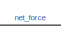
[diagram: root canvas - part 1/3, top center region]
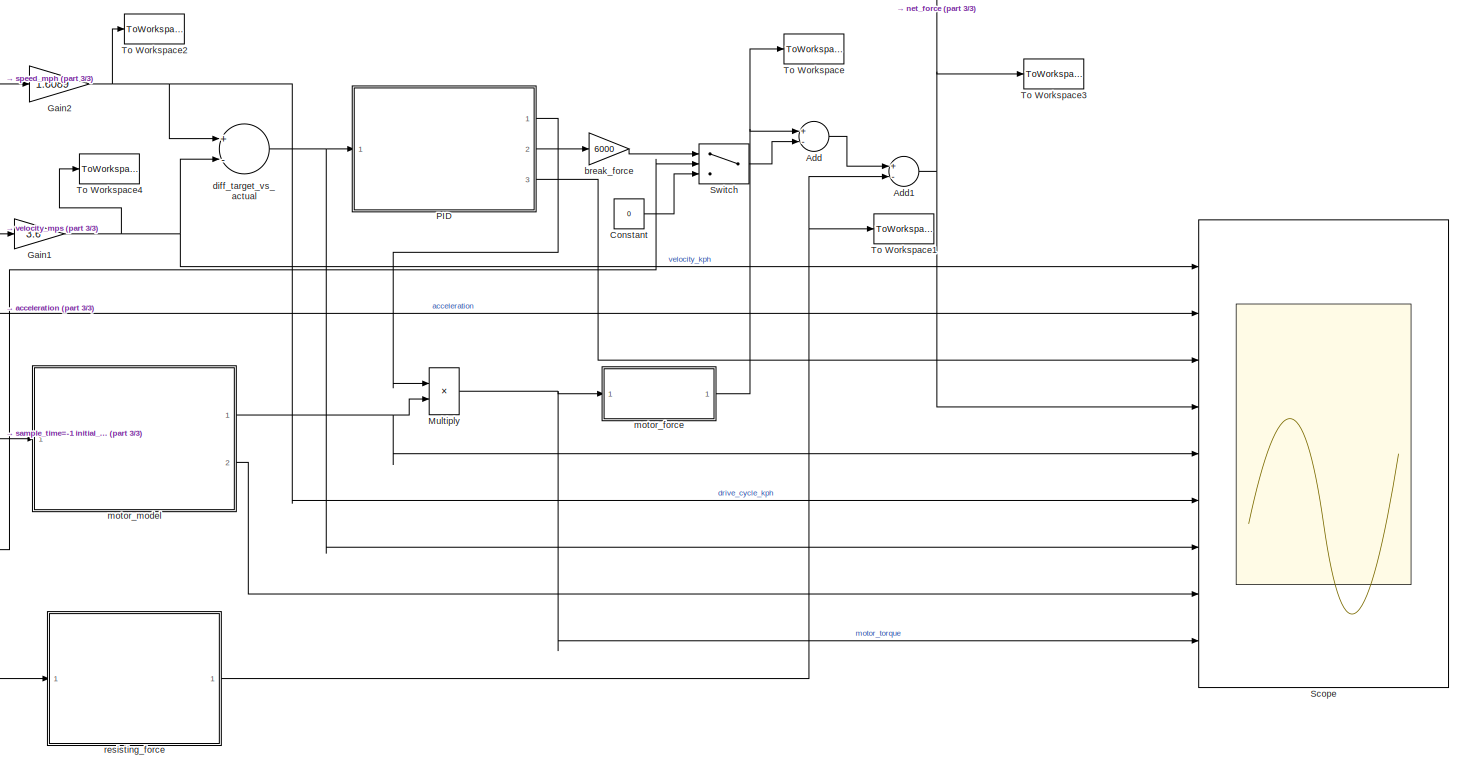
[diagram: root canvas - part 2/3, most of the canvas]
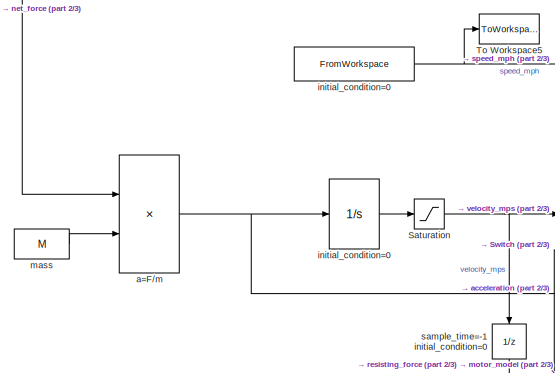
[diagram: root canvas - part 3/3, middle left region]
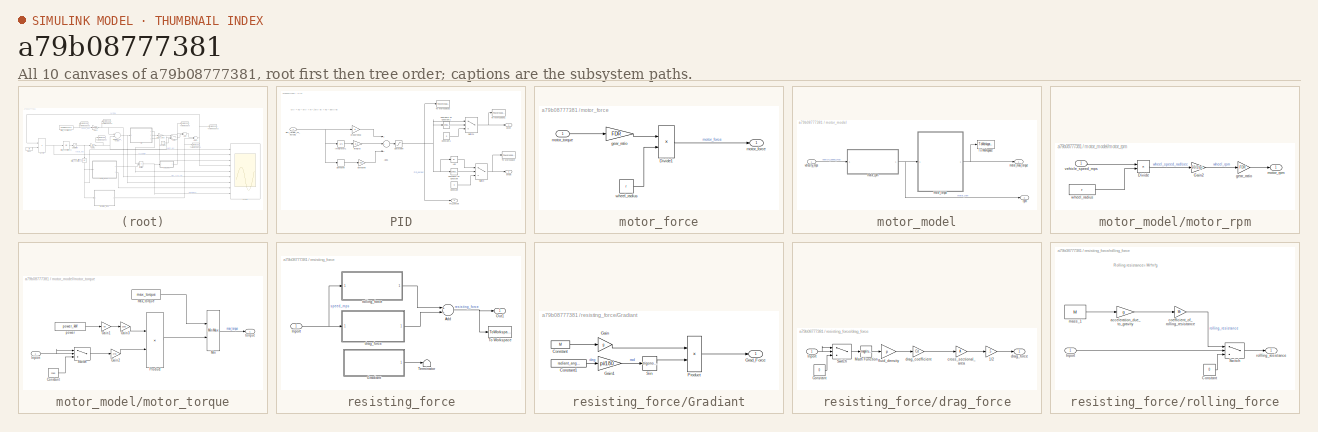
[diagram: thumbnail index - all 10 canvases of the model, root first then tree order]
MODEL slx_a79b08777381
KIND model
CONFIG AbsTol = auto
CONFIG EnableMultiTasking = off
CONFIG FixedStep = 0.01
CONFIG MaxStep = auto
CONFIG MinStep = auto
CONFIG RelTol = 1e-3
CONFIG SampleTimeConstraint = Unconstrained
CONFIG Solver = ode3
CONFIG SolverName = ode3
CONFIG StartTime = 0.0
CONFIG StopTime = sim_time
BLOCK [Sum] Add
  InputSameDT = off
  Inputs = +-
  OutDataTypeStr = Inherit: Inherit via internal rule
  Ports = [2, 1]
  SaturateOnIntegerOverflow = off
BLOCK [Sum] Add1
  InputSameDT = off
  Inputs = +-
  OutDataTypeStr = Inherit: Inherit via internal rule
  Ports = [2, 1]
  SaturateOnIntegerOverflow = off
BLOCK [Constant] Constant
  Value = 0
BLOCK [Gain] Gain1
  Gain = 3.6
  OutDataTypeStr = Inherit: Inherit via internal rule
  ParamDataTypeStr = Inherit: Inherit via internal rule
  SaturateOnIntegerOverflow = off
BLOCK [Gain] Gain2
  Gain = 1.6089
  OutDataTypeStr = Inherit: Inherit via internal rule
  ParamDataTypeStr = Inherit: Inherit via internal rule
  SaturateOnIntegerOverflow = off
BLOCK [Product] Multiply
  InputSameDT = off
  OutDataTypeStr = Inherit: Inherit via internal rule
  Ports = [2, 1]
  RndMeth = Floor
  SaturateOnIntegerOverflow = off
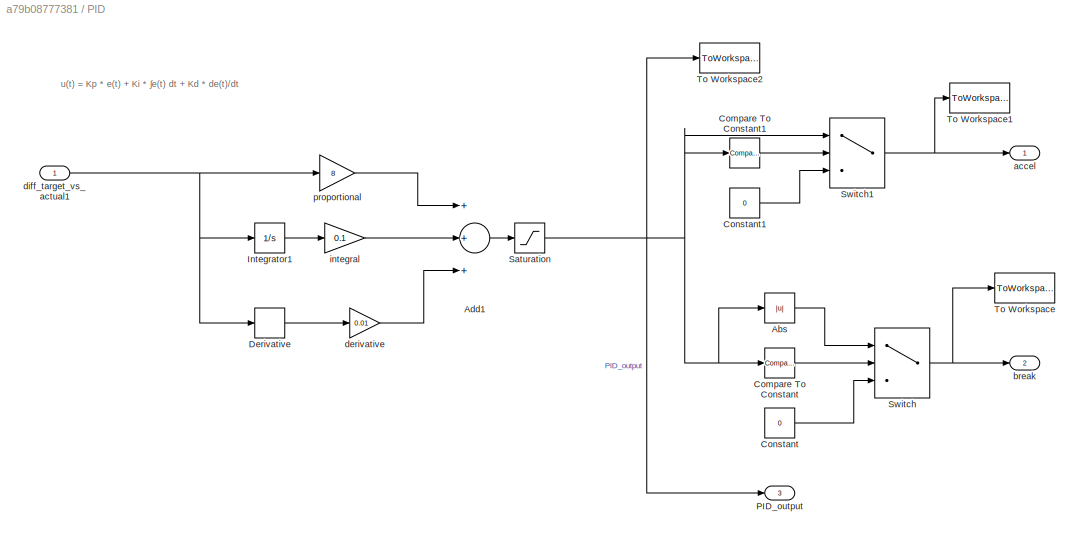
BLOCK [SubSystem] PID
  Ports = [1, 3]
  RequestExecContextInheritance = off
BLOCK [Abs] PID/Abs
  SaturateOnIntegerOverflow = off
BLOCK [Sum] PID/Add1
  InputSameDT = off
  Inputs = +++
  OutDataTypeStr = Inherit: Inherit via internal rule
  Ports = [3, 1]
  SaturateOnIntegerOverflow = off
BLOCK [Reference] PID/Compare To Constant  REF=simulink/Logic and Bit
Operations/Compare
To Constant
  Ports = [1, 1]
  SourceBlock = simulink/Logic and Bit\nOperations/Compare\nTo Constant
  SourceProductBaseCode = SL
  SourceProductName = Simulink
  SourceType = Compare To Constant
BLOCK [Reference] PID/Compare To Constant1  REF=simulink/Logic and Bit
Operations/Compare
To Constant
  Ports = [1, 1]
  SourceBlock = simulink/Logic and Bit\nOperations/Compare\nTo Constant
  SourceProductBaseCode = SL
  SourceProductName = Simulink
  SourceType = Compare To Constant
BLOCK [Constant] PID/Constant
  Value = 0
BLOCK [Constant] PID/Constant1
  Value = 0
BLOCK [Derivative] PID/Derivative
BLOCK [Integrator] PID/Integrator1
  Ports = [1, 1]
BLOCK [Outport] PID/PID_output
  IconDisplay = Port number
  Port = 3
BLOCK [Saturate] PID/Saturation
  InputPortMap = u0
  LowerLimit = -1
  Ports = [1, 1]
  UpperLimit = 1
BLOCK [Switch] PID/Switch
  Criteria = u2 ~= 0
  InputSameDT = off
  SaturateOnIntegerOverflow = off
BLOCK [Switch] PID/Switch1
  Criteria = u2 > Threshold
  InputSameDT = off
  SaturateOnIntegerOverflow = off
BLOCK [ToWorkspace] PID/To Workspace
  FixptAsFi = on
  MaxDataPoints = inf
  Ports = [1]
  SampleTime = -1
  Save2DSignal = 3-D array (concatenate along third dimension)
  SaveFormat = Timeseries
  VariableName = pid_lower
BLOCK [ToWorkspace] PID/To Workspace1
  FixptAsFi = on
  MaxDataPoints = inf
  Ports = [1]
  SampleTime = -1
  Save2DSignal = 3-D array (concatenate along third dimension)
  SaveFormat = Timeseries
  VariableName = pid_upper
BLOCK [ToWorkspace] PID/To Workspace2
  FixptAsFi = on
  MaxDataPoints = inf
  Ports = [1]
  SampleTime = -1
  Save2DSignal = 3-D array (concatenate along third dimension)
  SaveFormat = Timeseries
  VariableName = pid_out_test
BLOCK [Outport] PID/accel
  IconDisplay = Port number
BLOCK [Outport] PID/break
  IconDisplay = Port number
  Port = 2
BLOCK [Gain] PID/derivative 
  Gain = 0.01
  OutDataTypeStr = Inherit: Inherit via internal rule
  ParamDataTypeStr = Inherit: Inherit via internal rule
  SaturateOnIntegerOverflow = off
BLOCK [Inport] PID/diff_target_vs_actual1
  IconDisplay = Port number
BLOCK [Gain] PID/integral
  Gain = 0.1
  OutDataTypeStr = Inherit: Inherit via internal rule
  ParamDataTypeStr = Inherit: Inherit via internal rule
  SaturateOnIntegerOverflow = off
BLOCK [Gain] PID/proportional
  Gain = 8
  OutDataTypeStr = Inherit: Inherit via internal rule
  ParamDataTypeStr = Inherit: Inherit via internal rule
  SaturateOnIntegerOverflow = off
BLOCK [Saturate] Saturation
  InputPortMap = u0
  LowerLimit = 0
  Ports = [1, 1]
  UpperLimit = inf
BLOCK [Scope] Scope
  Floating = off
  NumInputPorts = 9
  Ports = [9]
  ScopeSpecificationString = Simulink.scopes.TimeScopeBlockCfg('CurrentConfiguration', extmgr.ConfigurationSet(extmgr.Configuration('Core','General UI',true),extmgr.Configuration('Core','Source UI',true),extmgr.Configuration('Sources','WiredSimulink',true),extmgr.Configuration('Visuals','Time Domain',true,'SerializedDisplays',{struct('MinYLimReal','-16.14951','MaxYLimReal','145.34561','YLabelReal','','MinYLimMag','0.00000','M...<+9915ch>
BLOCK [Switch] Switch
  Criteria = u2 ~= 0
  InputSameDT = off
  SaturateOnIntegerOverflow = off
BLOCK [ToWorkspace] To Workspace
  FixptAsFi = on
  MaxDataPoints = inf
  Ports = [1]
  SampleTime = -1
  Save2DSignal = 3-D array (concatenate along third dimension)
  SaveFormat = Timeseries
  VariableName = accel_force
BLOCK [ToWorkspace] To Workspace1
  FixptAsFi = on
  MaxDataPoints = inf
  Ports = [1]
  SampleTime = -1
  Save2DSignal = 3-D array (concatenate along third dimension)
  SaveFormat = Timeseries
  VariableName = break_force
BLOCK [ToWorkspace] To Workspace2
  FixptAsFi = on
  MaxDataPoints = inf
  Ports = [1]
  SampleTime = -1
  Save2DSignal = 3-D array (concatenate along third dimension)
  SaveFormat = Timeseries
  VariableName = actual_speed
BLOCK [ToWorkspace] To Workspace3
  FixptAsFi = on
  MaxDataPoints = inf
  Ports = [1]
  SampleTime = -1
  Save2DSignal = 3-D array (concatenate along third dimension)
  SaveFormat = Timeseries
  VariableName = net_force
BLOCK [ToWorkspace] To Workspace4
  FixptAsFi = on
  MaxDataPoints = inf
  Ports = [1]
  SampleTime = -1
  Save2DSignal = 3-D array (concatenate along third dimension)
  SaveFormat = Timeseries
  VariableName = measured_speed
BLOCK [ToWorkspace] To Workspace5
  FixptAsFi = on
  MaxDataPoints = inf
  Ports = [1]
  SampleTime = -1
  Save2DSignal = 3-D array (concatenate along third dimension)
  SaveFormat = Timeseries
  VariableName = speed_test
BLOCK [Product] a=F//m
  InputSameDT = off
  Inputs = */
  OutDataTypeStr = Inherit: Inherit via internal rule
  Ports = [2, 1]
  RndMeth = Floor
  SaturateOnIntegerOverflow = off
BLOCK [Gain] break_force
  Gain = 6000
  OutDataTypeStr = Inherit: Inherit via internal rule
  ParamDataTypeStr = Inherit: Inherit via internal rule
  SaturateOnIntegerOverflow = off
BLOCK [Sum] diff_target_vs_actual
  InputSameDT = off
  Inputs = +-
  OutDataTypeStr = Inherit: Inherit via internal rule
  Ports = [2, 1]
  SaturateOnIntegerOverflow = off
BLOCK [Integrator] initial_condition=0
  InitialCondition = initial_speed
  LowerSaturationLimit = 0
  Ports = [1, 1]
BLOCK [FromWorkspace] initial_condition=0 
  SampleTime = 0.01
  VariableName = drive_cycle
  ZeroCross = on
BLOCK [Constant] mass
  Value = M
BLOCK [SubSystem] motor_force
  Ports = [1, 1]
  RequestExecContextInheritance = off
BLOCK [Product] motor_force/Divide1
  InputSameDT = off
  Inputs = */
  OutDataTypeStr = Inherit: Inherit via internal rule
  Ports = [2, 1]
  RndMeth = Floor
  SaturateOnIntegerOverflow = off
BLOCK [Gain] motor_force/gear_ratio
  Gain = FDR
  OutDataTypeStr = Inherit: Inherit via internal rule
  ParamDataTypeStr = Inherit: Inherit via internal rule
  SaturateOnIntegerOverflow = off
BLOCK [Outport] motor_force/motor_force
  IconDisplay = Port number
BLOCK [Inport] motor_force/motor_torque
  IconDisplay = Port number
BLOCK [Constant] motor_force/wheel_radius
  Value = r
BLOCK [SubSystem] motor_model
  Ports = [1, 2]
  RequestExecContextInheritance = off
BLOCK [ToWorkspace] motor_model/To Workspace
  FixptAsFi = on
  MaxDataPoints = inf
  Ports = [1]
  SampleTime = -1
  Save2DSignal = 3-D array (concatenate along third dimension)
  SaveFormat = Timeseries
  VariableName = torque_data
BLOCK [Outport] motor_model/motor_max_torque
  IconDisplay = Port number
BLOCK [SubSystem] motor_model/motor_rpm
  Ports = [1, 1]
  RequestExecContextInheritance = off
BLOCK [Product] motor_model/motor_rpm/Divide
  InputSameDT = off
  Inputs = */
  OutDataTypeStr = Inherit: Inherit via internal rule
  Ports = [2, 1]
  RndMeth = Floor
  SaturateOnIntegerOverflow = off
BLOCK [Gain] motor_model/motor_rpm/Gain2
  Gain = 60/2/pi
  OutDataTypeStr = Inherit: Inherit via internal rule
  ParamDataTypeStr = Inherit: Inherit via internal rule
  SaturateOnIntegerOverflow = off
BLOCK [Gain] motor_model/motor_rpm/gear_ratio
  Gain = FDR
  OutDataTypeStr = Inherit: Inherit via internal rule
  ParamDataTypeStr = Inherit: Inherit via internal rule
  SaturateOnIntegerOverflow = off
BLOCK [Outport] motor_model/motor_rpm/motor_rpm
  IconDisplay = Port number
BLOCK [Inport] motor_model/motor_rpm/vehicle_speed_mps
  IconDisplay = Port number
BLOCK [Constant] motor_model/motor_rpm/wheel_radius
  Value = r
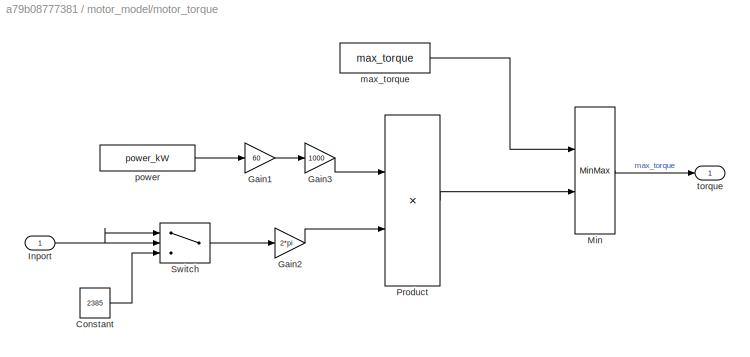
BLOCK [SubSystem] motor_model/motor_torque
  Ports = [1, 1]
  RequestExecContextInheritance = off
BLOCK [Constant] motor_model/motor_torque/Constant
  Value = 2385
BLOCK [Gain] motor_model/motor_torque/Gain1
  Gain = 60
  OutDataTypeStr = Inherit: Inherit via internal rule
  ParamDataTypeStr = Inherit: Inherit via internal rule
  SaturateOnIntegerOverflow = off
BLOCK [Gain] motor_model/motor_torque/Gain2
  Gain = 2*pi
  OutDataTypeStr = Inherit: Inherit via internal rule
  ParamDataTypeStr = Inherit: Inherit via internal rule
  SaturateOnIntegerOverflow = off
BLOCK [Gain] motor_model/motor_torque/Gain3
  Gain = 1000
  OutDataTypeStr = Inherit: Inherit via internal rule
  ParamDataTypeStr = Inherit: Inherit via internal rule
  SaturateOnIntegerOverflow = off
BLOCK [Inport] motor_model/motor_torque/Inport
  IconDisplay = Port number
BLOCK [MinMax] motor_model/motor_torque/Min
  InputSameDT = off
  Inputs = 2
  Ports = [2, 1]
  SaturateOnIntegerOverflow = off
BLOCK [Product] motor_model/motor_torque/Product
  InputSameDT = off
  Inputs = */
  OutDataTypeStr = Inherit: Inherit via internal rule
  Ports = [2, 1]
  RndMeth = Floor
  SaturateOnIntegerOverflow = off
BLOCK [Switch] motor_model/motor_torque/Switch
  Criteria = u2 ~= 0
  InputSameDT = off
  SaturateOnIntegerOverflow = off
BLOCK [Constant] motor_model/motor_torque/max_torque
  Value = max_torque
BLOCK [Constant] motor_model/motor_torque/power
  Value = power_kW
BLOCK [Outport] motor_model/motor_torque/torque
  IconDisplay = Port number
BLOCK [Outport] motor_model/rpm
  IconDisplay = Port number
  Port = 2
BLOCK [Inport] motor_model/velocity_mps
  IconDisplay = Port number
BLOCK [SubSystem] resisting_force
  Ports = [1, 1]
  RequestExecContextInheritance = off
BLOCK [Sum] resisting_force/Add
  InputSameDT = off
  OutDataTypeStr = Inherit: Inherit via internal rule
  Ports = [2, 1]
  SaturateOnIntegerOverflow = off
BLOCK [SubSystem] resisting_force/Gradiant
  Ports = [0, 1]
  RequestExecContextInheritance = off
BLOCK [Constant] resisting_force/Gradiant/Constant
  Value = M
BLOCK [Constant] resisting_force/Gradiant/Constant1
  Value = radiant_angle
BLOCK [Gain] resisting_force/Gradiant/Gain
  Gain = g
  OutDataTypeStr = Inherit: Inherit via internal rule
  ParamDataTypeStr = Inherit: Inherit via internal rule
  SaturateOnIntegerOverflow = off
BLOCK [Gain] resisting_force/Gradiant/Gain1
  Gain = pi/180
  OutDataTypeStr = Inherit: Inherit via internal rule
  ParamDataTypeStr = Inherit: Inherit via internal rule
  SaturateOnIntegerOverflow = off
BLOCK [Outport] resisting_force/Gradiant/Grad_Force
  IconDisplay = Port number
BLOCK [Product] resisting_force/Gradiant/Product
  InputSameDT = off
  OutDataTypeStr = Inherit: Inherit via internal rule
  Ports = [2, 1]
  RndMeth = Floor
  SaturateOnIntegerOverflow = off
BLOCK [Trigonometry] resisting_force/Gradiant/Sin
  Ports = [1, 1]
BLOCK [Inport] resisting_force/Inport
  IconDisplay = Port number
BLOCK [Outport] resisting_force/Out1
  IconDisplay = Port number
BLOCK [Terminator] resisting_force/Terminator
BLOCK [ToWorkspace] resisting_force/To Workspace
  FixptAsFi = on
  MaxDataPoints = inf
  Ports = [1]
  SampleTime = -1
  Save2DSignal = 3-D array (concatenate along third dimension)
  SaveFormat = Timeseries
  VariableName = resis_force
BLOCK [SubSystem] resisting_force/drag_force
  Ports = [1, 1]
  RequestExecContextInheritance = off
BLOCK [Gain] resisting_force/drag_force/1//2
  Gain = .5
  OutDataTypeStr = Inherit: Inherit via internal rule
  ParamDataTypeStr = Inherit: Inherit via internal rule
  SaturateOnIntegerOverflow = off
BLOCK [Constant] resisting_force/drag_force/Constant
  Value = 0
BLOCK [Inport] resisting_force/drag_force/Inport
  IconDisplay = Port number
BLOCK [Math] resisting_force/drag_force/Math Function
  Operator = magnitude^2
  OutputSignalType = real
  Ports = [1, 1]
BLOCK [Switch] resisting_force/drag_force/Switch
  Criteria = u2 ~= 0
  InputSameDT = off
  SaturateOnIntegerOverflow = off
BLOCK [Gain] resisting_force/drag_force/cross_sectional_area
  Gain = A
  OutDataTypeStr = Inherit: Inherit via internal rule
  ParamDataTypeStr = Inherit: Inherit via internal rule
  SaturateOnIntegerOverflow = off
BLOCK [Gain] resisting_force/drag_force/drag_coefficient
  Gain = Cd
  OutDataTypeStr = Inherit: Inherit via internal rule
  ParamDataTypeStr = Inherit: Inherit via internal rule
  SaturateOnIntegerOverflow = off
BLOCK [Outport] resisting_force/drag_force/drag_force
  IconDisplay = Port number
BLOCK [Gain] resisting_force/drag_force/fluid_density
  Gain = p
  OutDataTypeStr = Inherit: Inherit via internal rule
  ParamDataTypeStr = Inherit: Inherit via internal rule
  SaturateOnIntegerOverflow = off
BLOCK [SubSystem] resisting_force/rolling_force
  Ports = [1, 1]
  RequestExecContextInheritance = off
BLOCK [Constant] resisting_force/rolling_force/Constant
  Value = 0
BLOCK [Inport] resisting_force/rolling_force/Inport
  IconDisplay = Port number
BLOCK [Switch] resisting_force/rolling_force/Switch
  Criteria = u2 ~= 0
  InputSameDT = off
  SaturateOnIntegerOverflow = off
BLOCK [Gain] resisting_force/rolling_force/acceleration_due_to_gravity 
  Gain = g
  OutDataTypeStr = Inherit: Inherit via internal rule
  ParamDataTypeStr = Inherit: Inherit via internal rule
  SaturateOnIntegerOverflow = off
BLOCK [Gain] resisting_force/rolling_force/coefficient_of_rolling_resistance
  Gain = Mr
  OutDataTypeStr = Inherit: Inherit via internal rule
  ParamDataTypeStr = Inherit: Inherit via internal rule
  SaturateOnIntegerOverflow = off
BLOCK [Constant] resisting_force/rolling_force/mass_1
  Value = M
BLOCK [Outport] resisting_force/rolling_force/rollling_resistance
  IconDisplay = Port number
BLOCK [UnitDelay] sample_time=-1 initial_condition=0 
  InputProcessing = Elements as channels (sample based)
  SampleTime = -1
ANNOTATION PID: u(t) = Kp * e(t) + Ki * ∫e(t) dt + Kd * de(t)/dt
ANNOTATION resisting_force/rolling_force: Rolling resistance= Mr*m*g
NET Add1:1 -> Scope:4, To Workspace3:1, a=F//m:1
LINE Add:1 -> Add1:1
LINE Constant:1 -> Switch:3
NET Gain1:1 -> Scope:1, To Workspace4:1, diff_target_vs_actual:2
NET Gain2:1 -> Scope:6, To Workspace2:1, diff_target_vs_actual:1
NET Multiply:1 -> Scope:9, motor_force:1
LINE PID/Abs:1 -> PID/Switch:1
LINE PID/Add1:1 -> PID/Saturation:1
LINE PID/Compare To Constant1:1 -> PID/Switch1:2
LINE PID/Compare To Constant:1 -> PID/Switch:2
LINE PID/Constant1:1 -> PID/Switch1:3
LINE PID/Constant:1 -> PID/Switch:3
LINE PID/Derivative:1 -> PID/derivative :1
LINE PID/Integrator1:1 -> PID/integral:1
NET PID/Saturation:1 -> PID/Abs:1, PID/Compare To Constant1:1, PID/Compare To Constant:1, PID/PID_output:1, PID/Switch1:1, PID/To Workspace2:1
NET PID/Switch1:1 -> PID/To Workspace1:1, PID/accel:1
NET PID/Switch:1 -> PID/To Workspace:1, PID/break:1
LINE PID/derivative :1 -> PID/Add1:3
NET PID/diff_target_vs_actual1:1 -> PID/Derivative:1, PID/Integrator1:1, PID/proportional:1
LINE PID/integral:1 -> PID/Add1:2
LINE PID/proportional:1 -> PID/Add1:1
LINE PID:1 -> Multiply:1
LINE PID:2 -> break_force:1
LINE PID:3 -> Scope:3
NET Saturation:1 -> Gain1:1, sample_time=-1 initial_condition=0 :1
LINE Switch:1 -> Add:2
NET a=F//m:1 -> Scope:2, initial_condition=0:1
LINE break_force:1 -> Switch:1
NET diff_target_vs_actual:1 -> PID:1, Scope:7
NET initial_condition=0 :1 -> Gain2:1, To Workspace5:1
LINE initial_condition=0:1 -> Saturation:1
LINE mass:1 -> a=F//m:2
LINE motor_force/Divide1:1 -> motor_force/motor_force:1
LINE motor_force/gear_ratio:1 -> motor_force/Divide1:1
LINE motor_force/motor_torque:1 -> motor_force/gear_ratio:1
LINE motor_force/wheel_radius:1 -> motor_force/Divide1:2
NET motor_force:1 -> Add:1, To Workspace:1
LINE motor_model/motor_rpm/Divide:1 -> motor_model/motor_rpm/Gain2:1
LINE motor_model/motor_rpm/Gain2:1 -> motor_model/motor_rpm/gear_ratio:1
LINE motor_model/motor_rpm/gear_ratio:1 -> motor_model/motor_rpm/motor_rpm:1
LINE motor_model/motor_rpm/vehicle_speed_mps:1 -> motor_model/motor_rpm/Divide:1
LINE motor_model/motor_rpm/wheel_radius:1 -> motor_model/motor_rpm/Divide:2
NET motor_model/motor_rpm:1 -> motor_model/motor_torque:1, motor_model/rpm:1
LINE motor_model/motor_torque/Constant:1 -> motor_model/motor_torque/Switch:3
LINE motor_model/motor_torque/Gain1:1 -> motor_model/motor_torque/Gain3:1
LINE motor_model/motor_torque/Gain2:1 -> motor_model/motor_torque/Product:2
LINE motor_model/motor_torque/Gain3:1 -> motor_model/motor_torque/Product:1
NET motor_model/motor_torque/Inport:1 -> motor_model/motor_torque/Switch:1, motor_model/motor_torque/Switch:2
LINE motor_model/motor_torque/Min:1 -> motor_model/motor_torque/torque:1
LINE motor_model/motor_torque/Product:1 -> motor_model/motor_torque/Min:2
LINE motor_model/motor_torque/Switch:1 -> motor_model/motor_torque/Gain2:1
LINE motor_model/motor_torque/max_torque:1 -> motor_model/motor_torque/Min:1
LINE motor_model/motor_torque/power:1 -> motor_model/motor_torque/Gain1:1
NET motor_model/motor_torque:1 -> motor_model/To Workspace:1, motor_model/motor_max_torque:1
LINE motor_model/velocity_mps:1 -> motor_model/motor_rpm:1
NET motor_model:1 -> Multiply:2, Scope:5
LINE motor_model:2 -> Scope:8
NET resisting_force/Add:1 -> resisting_force/Out1:1, resisting_force/To Workspace:1
LINE resisting_force/Gradiant/Constant1:1 -> resisting_force/Gradiant/Gain1:1
LINE resisting_force/Gradiant/Constant:1 -> resisting_force/Gradiant/Gain:1
LINE resisting_force/Gradiant/Gain1:1 -> resisting_force/Gradiant/Sin:1
LINE resisting_force/Gradiant/Gain:1 -> resisting_force/Gradiant/Product:1
LINE resisting_force/Gradiant/Product:1 -> resisting_force/Gradiant/Grad_Force:1
LINE resisting_force/Gradiant/Sin:1 -> resisting_force/Gradiant/Product:2
LINE resisting_force/Gradiant:1 -> resisting_force/Terminator:1
NET resisting_force/Inport:1 -> resisting_force/drag_force:1, resisting_force/rolling_force:1
LINE resisting_force/drag_force/1//2:1 -> resisting_force/drag_force/drag_force:1
LINE resisting_force/drag_force/Constant:1 -> resisting_force/drag_force/Switch:3
NET resisting_force/drag_force/Inport:1 -> resisting_force/drag_force/Switch:1, resisting_force/drag_force/Switch:2
LINE resisting_force/drag_force/Math Function:1 -> resisting_force/drag_force/fluid_density:1
LINE resisting_force/drag_force/Switch:1 -> resisting_force/drag_force/Math Function:1
LINE resisting_force/drag_force/cross_sectional_area:1 -> resisting_force/drag_force/1//2:1
LINE resisting_force/drag_force/drag_coefficient:1 -> resisting_force/drag_force/cross_sectional_area:1
LINE resisting_force/drag_force/fluid_density:1 -> resisting_force/drag_force/drag_coefficient:1
LINE resisting_force/drag_force:1 -> resisting_force/Add:2
LINE resisting_force/rolling_force/Constant:1 -> resisting_force/rolling_force/Switch:3
LINE resisting_force/rolling_force/Inport:1 -> resisting_force/rolling_force/Switch:2
LINE resisting_force/rolling_force/Switch:1 -> resisting_force/rolling_force/rollling_resistance:1
LINE resisting_force/rolling_force/acceleration_due_to_gravity :1 -> resisting_force/rolling_force/coefficient_of_rolling_resistance:1
LINE resisting_force/rolling_force/coefficient_of_rolling_resistance:1 -> resisting_force/rolling_force/Switch:1
LINE resisting_force/rolling_force/mass_1:1 -> resisting_force/rolling_force/acceleration_due_to_gravity :1
LINE resisting_force/rolling_force:1 -> resisting_force/Add:1
NET resisting_force:1 -> Add1:2, To Workspace1:1
NET sample_time=-1 initial_condition=0 :1 -> Switch:2, motor_model:1, resisting_force:1
note: NET lines group one-source signal fan-out (src -> all destinations, sorted); 1:1 wires keep LINE
